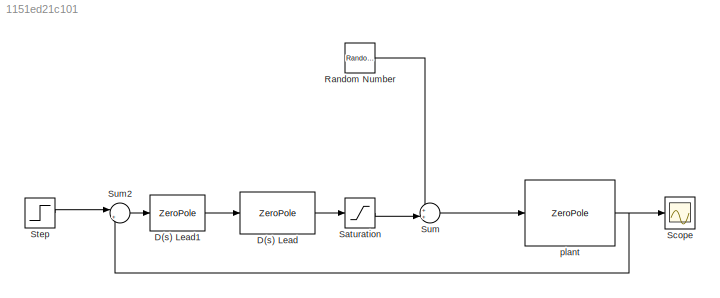
MODEL slx_1151ed21c101
KIND model
CONFIG AbsTol = auto
CONFIG EnableMultiTasking = off
CONFIG FixedStep = auto
CONFIG MaxStep = auto
CONFIG MinStep = auto
CONFIG RelTol = 1e-3
CONFIG SampleTimeConstraint = Unconstrained
CONFIG Solver = VariableStepAuto
CONFIG SolverName = VariableStepAuto
CONFIG StartTime = 0.0
CONFIG StopTime = 100
BLOCK [ZeroPole] D(s) Lead
  Poles = [-5]
  Zeros = []
BLOCK [ZeroPole] D(s) Lead1
  Gain = [64.4]
  Poles = [-8]
  Zeros = [-0.2668]
BLOCK [RandomNumber] Random Number
  SampleTime = 0.1
  Variance = pi/48
BLOCK [Saturate] Saturation
  InputPortMap = u0
  LowerLimit = -pi/12
  Ports = [1, 1]
  UpperLimit = pi/12
BLOCK [Scope] Scope
  Floating = off
  NumInputPorts = 1
  Ports = [1]
  ScopeSpecificationString = Simulink.scopes.TimeScopeBlockCfg('CurrentConfiguration', extmgr.ConfigurationSet(extmgr.Configuration('Core','General UI',true),extmgr.Configuration('Core','Source UI',true),extmgr.Configuration('Sources','WiredSimulink',true),extmgr.Configuration('Visuals','Time Domain',true,'SerializedDisplays',{struct('MinYLimReal','-0.52061','MaxYLimReal','4.68548','YLabelReal','','MinYLimMag','0.00000','MaxY...<+1351ch>
BLOCK [Step] Step
  After = 4
  SampleTime = 0
  Time = 0
BLOCK [Sum] Sum
  IconShape = round
  InputSameDT = off
  Inputs = ++|
  OutDataTypeStr = Inherit: Inherit via internal rule
  Ports = [2, 1]
  SaturateOnIntegerOverflow = off
BLOCK [Sum] Sum2
  IconShape = round
  InputSameDT = off
  Inputs = |+-
  OutDataTypeStr = Inherit: Inherit via internal rule
  Ports = [2, 1]
  SaturateOnIntegerOverflow = off
BLOCK [ZeroPole] plant
  Gain = [1.5]
  Poles = [0 0 -5/4]
  Zeros = []
LINE D(s) Lead1:1 -> D(s) Lead:1
LINE D(s) Lead:1 -> Saturation:1
LINE Random Number:1 -> Sum:1
LINE Saturation:1 -> Sum:2
LINE Step:1 -> Sum2:1
LINE Sum2:1 -> D(s) Lead1:1
LINE Sum:1 -> plant:1
NET plant:1 -> Scope:1, Sum2:2
note: NET lines group one-source signal fan-out (src -> all destinations, sorted); 1:1 wires keep LINE
